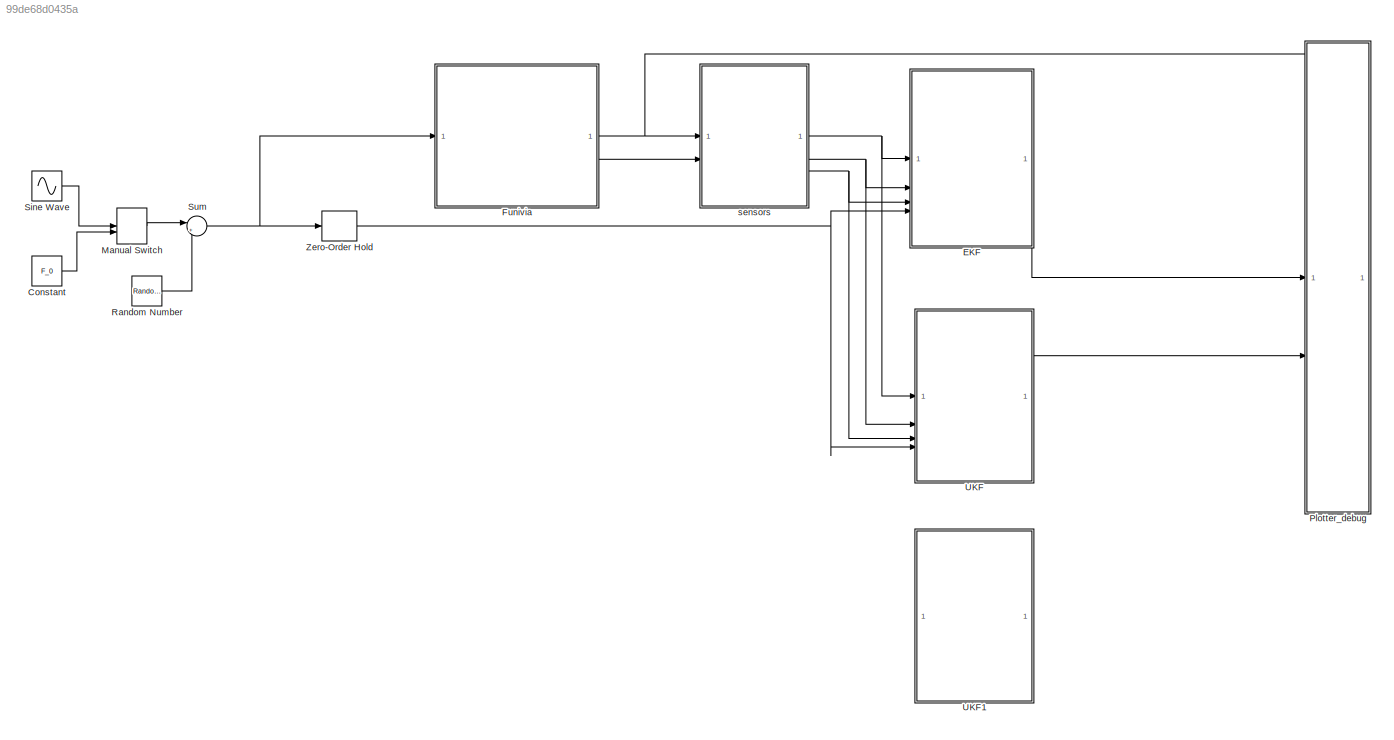
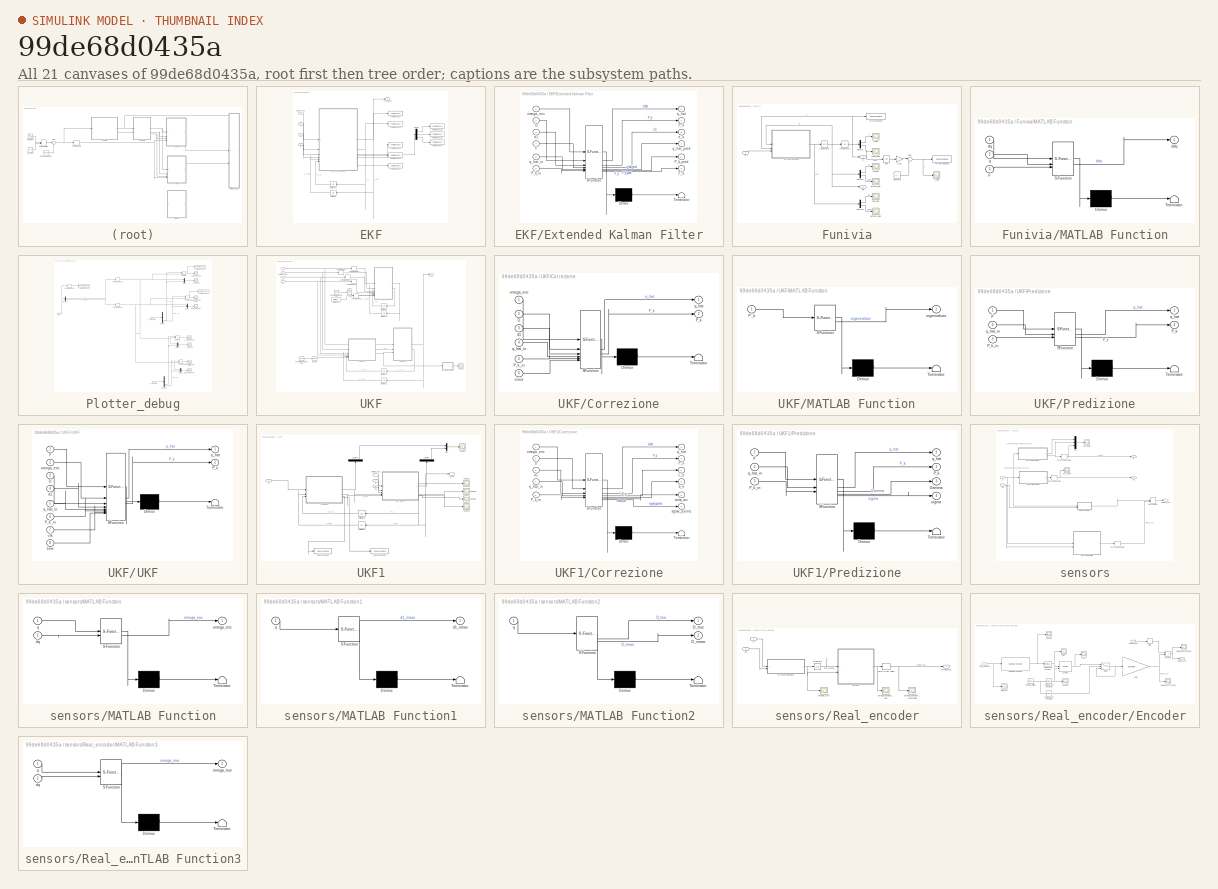
[diagram: thumbnail index - all 21 canvases of the model, root first then tree order]
MODEL slx_99de68d0435a
KIND model
CONFIG AbsTol = auto
CONFIG EnableMultiTasking = off
CONFIG FixedStep = 1e-5
CONFIG MaxStep = auto
CONFIG MinStep = auto
CONFIG RelTol = auto
CONFIG SampleTimeConstraint = Unconstrained
CONFIG SolverName = VariableStepAuto
CONFIG StartTime = 0.0
CONFIG StopTime = 10
BLOCK [Constant] Constant
  Value = F_0
BLOCK [SubSystem] EKF
BLOCK [Inport] EKF/D
  Port = 2
BLOCK [Demux] EKF/Demux
  Outputs = 3
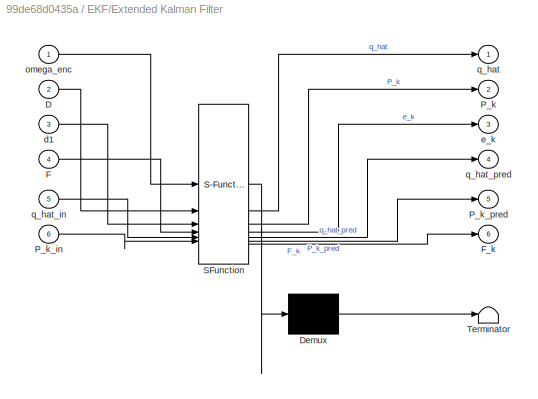
BLOCK [SubSystem] EKF/Extended Kalman Filter
  ErrorFcn = Stateflow.Translate.translate
  PermitHierarchicalResolution = ExplicitOnly
  SFBlockType = MATLAB Function
  TreatAsAtomicUnit = on
BLOCK [Demux] EKF/Extended Kalman Filter/ Demux 
  Outputs = 1
BLOCK [S-Function] EKF/Extended Kalman Filter/ SFunction 
  EnableBusSupport = on
  FunctionName = sf_sfun
  Parameters = R_k,min_sample_rates,params
  PortCounts = [6 7]
  SFcnIsStateOwnerBlock = off
  SFunctionDeploymentMode = off
  Tag = Stateflow S-Function 5
BLOCK [Terminator] EKF/Extended Kalman Filter/ Terminator 
BLOCK [Inport] EKF/Extended Kalman Filter/D
  Port = 2
BLOCK [Inport] EKF/Extended Kalman Filter/F
  Port = 4
BLOCK [Outport] EKF/Extended Kalman Filter/F_k
  Port = 6
BLOCK [Outport] EKF/Extended Kalman Filter/P_k
  Port = 2
BLOCK [Inport] EKF/Extended Kalman Filter/P_k_in
  Port = 6
BLOCK [Outport] EKF/Extended Kalman Filter/P_k_pred
  Port = 5
BLOCK [Inport] EKF/Extended Kalman Filter/d1
  Port = 3
BLOCK [Outport] EKF/Extended Kalman Filter/e_k
  Port = 3
BLOCK [Inport] EKF/Extended Kalman Filter/omega_enc
BLOCK [Outport] EKF/Extended Kalman Filter/q_hat
BLOCK [Inport] EKF/Extended Kalman Filter/q_hat_in
  Port = 5
BLOCK [Outport] EKF/Extended Kalman Filter/q_hat_pred
  Port = 4
BLOCK [Inport] EKF/F
  Port = 4
BLOCK [ToWorkspace] EKF/To Workspace
  FixptAsFi = on
  MaxDataPoints = inf
  SampleTime = -1
  SaveFormat = Timeseries
  VariableName = q_hat_computed
BLOCK [ToWorkspace] EKF/To Workspace1
  FixptAsFi = on
  MaxDataPoints = inf
  SampleTime = -1
  SaveFormat = Timeseries
  VariableName = e_k_D
BLOCK [ToWorkspace] EKF/To Workspace2
  FixptAsFi = on
  MaxDataPoints = inf
  SampleTime = -1
  SaveFormat = Timeseries
  VariableName = e_k_d1
BLOCK [ToWorkspace] EKF/To Workspace3
  FixptAsFi = on
  MaxDataPoints = inf
  SampleTime = -1
  SaveFormat = Timeseries
  VariableName = e_k_omega
BLOCK [ToWorkspace] EKF/To Workspace4
  FixptAsFi = on
  MaxDataPoints = inf
  SampleTime = -1
  SaveFormat = Timeseries
  VariableName = P_k_corr
BLOCK [ToWorkspace] EKF/To Workspace5
  FixptAsFi = on
  MaxDataPoints = inf
  SampleTime = -1
  SaveFormat = Timeseries
  VariableName = q_hat_pred
BLOCK [ToWorkspace] EKF/To Workspace6
  FixptAsFi = on
  MaxDataPoints = inf
  SampleTime = -1
  SaveFormat = Timeseries
  VariableName = P_k_pred
BLOCK [ToWorkspace] EKF/To Workspace7
  FixptAsFi = on
  MaxDataPoints = inf
  SampleTime = -1
  SaveFormat = Timeseries
  VariableName = F_k
BLOCK [UnitDelay] EKF/Unit Delay
  HasFrameUpgradeWarning = on
  InitialCondition = q_hat_0
  NameLocation = top
  SampleTime = -1
BLOCK [UnitDelay] EKF/Unit Delay1
  HasFrameUpgradeWarning = on
  InitialCondition = eye(4)
  NameLocation = top
  SampleTime = -1
BLOCK [Inport] EKF/d1
  Port = 3
BLOCK [Inport] EKF/omega_enc
BLOCK [Outport] EKF/q_hat_EKF
BLOCK [SubSystem] Funivia
BLOCK [Constant] Funivia/Constant
  Value = L-l
BLOCK [Trigonometry] Funivia/Cos
  Operator = cos
BLOCK [Demux] Funivia/Demux
  Outputs = 2
BLOCK [Demux] Funivia/Demux1
  Outputs = 2
BLOCK [Demux] Funivia/Demux2
  Outputs = 2
BLOCK [Inport] Funivia/F
BLOCK [Gain] Funivia/Gain
  Gain = l
BLOCK [Integrator] Funivia/Integrator
  InitialCondition = dq_0
BLOCK [Integrator] Funivia/Integrator1
  InitialCondition = q_0
BLOCK [SubSystem] Funivia/MATLAB Function
  ErrorFcn = Stateflow.Translate.translate
  PermitHierarchicalResolution = ExplicitOnly
  SFBlockType = MATLAB Function
  TreatAsAtomicUnit = on
BLOCK [Demux] Funivia/MATLAB Function/ Demux 
  Outputs = 1
BLOCK [S-Function] Funivia/MATLAB Function/ SFunction 
  EnableBusSupport = on
  FunctionName = sf_sfun
  Parameters = params_incert
  PortCounts = [3 2]
  SFcnIsStateOwnerBlock = off
  SFunctionDeploymentMode = off
  Tag = Stateflow S-Function 2
BLOCK [Terminator] Funivia/MATLAB Function/ Terminator 
BLOCK [Inport] Funivia/MATLAB Function/F
  Port = 3
BLOCK [Outport] Funivia/MATLAB Function/ddq
BLOCK [Inport] Funivia/MATLAB Function/dq
BLOCK [Inport] Funivia/MATLAB Function/q
  Port = 2
BLOCK [Sum] Funivia/Sum
  Inputs = |++
BLOCK [ToWorkspace] Funivia/To Workspace
  FixptAsFi = on
  MaxDataPoints = inf
  SampleTime = -1
  SaveFormat = Timeseries
  VariableName = q
BLOCK [ToWorkspace] Funivia/To Workspace1
  FixptAsFi = on
  MaxDataPoints = inf
  SampleTime = -1
  SaveFormat = Timeseries
  VariableName = z
BLOCK [Scope] Funivia/ddtheta_plot
  Floating = off
  NumInputPorts = 1
  ScopeSpecificationString = Simulink.scopes.TimeScopeBlockCfg('CurrentConfiguration', extmgr.ConfigurationSet(extmgr.Configuration('Core','General UI',true),extmgr.Configuration('Core','Source UI',true),extmgr.Configuration('Sources','WiredSimulink',true,'DataLoggingVariableName','ScopeData4'),extmgr.Configuration('Visuals','Time Domain',true,'SerializedDisplays',{struct('MinYLimReal','-0.02636','MaxYLimReal','0.03729','YLab...<+1438ch>
BLOCK [Scope] Funivia/ddx_plot
  Floating = off
  NumInputPorts = 1
  ScopeSpecificationString = Simulink.scopes.TimeScopeBlockCfg('CurrentConfiguration', extmgr.ConfigurationSet(extmgr.Configuration('Core','General UI',true),extmgr.Configuration('Core','Source UI',true),extmgr.Configuration('Sources','WiredSimulink',true,'DataLoggingVariableName','ScopeData5'),extmgr.Configuration('Visuals','Time Domain',true,'SerializedDisplays',{struct('MinYLimReal','-4.75064','MaxYLimReal','5.3612','YLabe...<+1480ch>
BLOCK [Outport] Funivia/dq
  Port = 2
BLOCK [Scope] Funivia/dtheta_plot
  Floating = off
  NumInputPorts = 1
  ScopeSpecificationString = Simulink.scopes.TimeScopeBlockCfg('CurrentConfiguration', extmgr.ConfigurationSet(extmgr.Configuration('Core','General UI',true),extmgr.Configuration('Core','Source UI',true),extmgr.Configuration('Sources','WiredSimulink',true,'DataLoggingVariableName','ScopeData2'),extmgr.Configuration('Visuals','Time Domain',true,'SerializedDisplays',{struct('MinYLimReal','-0.08246','MaxYLimReal','0.08249','YLab...<+1419ch>
BLOCK [Scope] Funivia/dx_plot
  Floating = off
  NumInputPorts = 1
  ScopeSpecificationString = Simulink.scopes.TimeScopeBlockCfg('CurrentConfiguration', extmgr.ConfigurationSet(extmgr.Configuration('Core','General UI',true),extmgr.Configuration('Core','Source UI',true),extmgr.Configuration('Sources','WiredSimulink',true,'DataLoggingVariableName','ScopeData3'),extmgr.Configuration('Visuals','Time Domain',true,'SerializedDisplays',{struct('MinYLimReal','-5.83307','MaxYLimReal','52.49767','YLa...<+1481ch>
BLOCK [Outport] Funivia/q
BLOCK [Scope] Funivia/theta_plot
  Floating = off
  NumInputPorts = 1
  ScopeSpecificationString = Simulink.scopes.TimeScopeBlockCfg('CurrentConfiguration', extmgr.ConfigurationSet(extmgr.Configuration('Core','General UI',true),extmgr.Configuration('Core','Source UI',true),extmgr.Configuration('Sources','WiredSimulink',true),extmgr.Configuration('Visuals','Time Domain',true,'SerializedDisplays',{struct('MinYLimReal','-0.03363','MaxYLimReal','0.00489','YLabelReal','','MinYLimMag','0.00000','MaxY...<+1399ch>
BLOCK [Scope] Funivia/x_plot
  Floating = off
  NumInputPorts = 1
  ScopeSpecificationString = Simulink.scopes.TimeScopeBlockCfg('CurrentConfiguration', extmgr.ConfigurationSet(extmgr.Configuration('Core','General UI',true),extmgr.Configuration('Core','Source UI',true),extmgr.Configuration('Sources','WiredSimulink',true,'DataLoggingVariableName','ScopeData1'),extmgr.Configuration('Visuals','Time Domain',true,'SerializedDisplays',{struct('MinYLimReal','-0.40294','MaxYLimReal','3.62649','YLab...<+1474ch>
BLOCK [Scope] Funivia/z_plot
  Floating = off
  NumInputPorts = 1
  ScopeSpecificationString = Simulink.scopes.TimeScopeBlockCfg('CurrentConfiguration', extmgr.ConfigurationSet(extmgr.Configuration('Core','General UI',true),extmgr.Configuration('Core','Source UI',true),extmgr.Configuration('Sources','WiredSimulink',true,'DataLoggingVariableName','ScopeData1'),extmgr.Configuration('Visuals','Time Domain',true,'SerializedDisplays',{struct('MinYLimReal','-0.275','MaxYLimReal','2.475','YLabelRe...<+1470ch>
BLOCK [ManualSwitch] Manual Switch
  CurrentSetting = 0
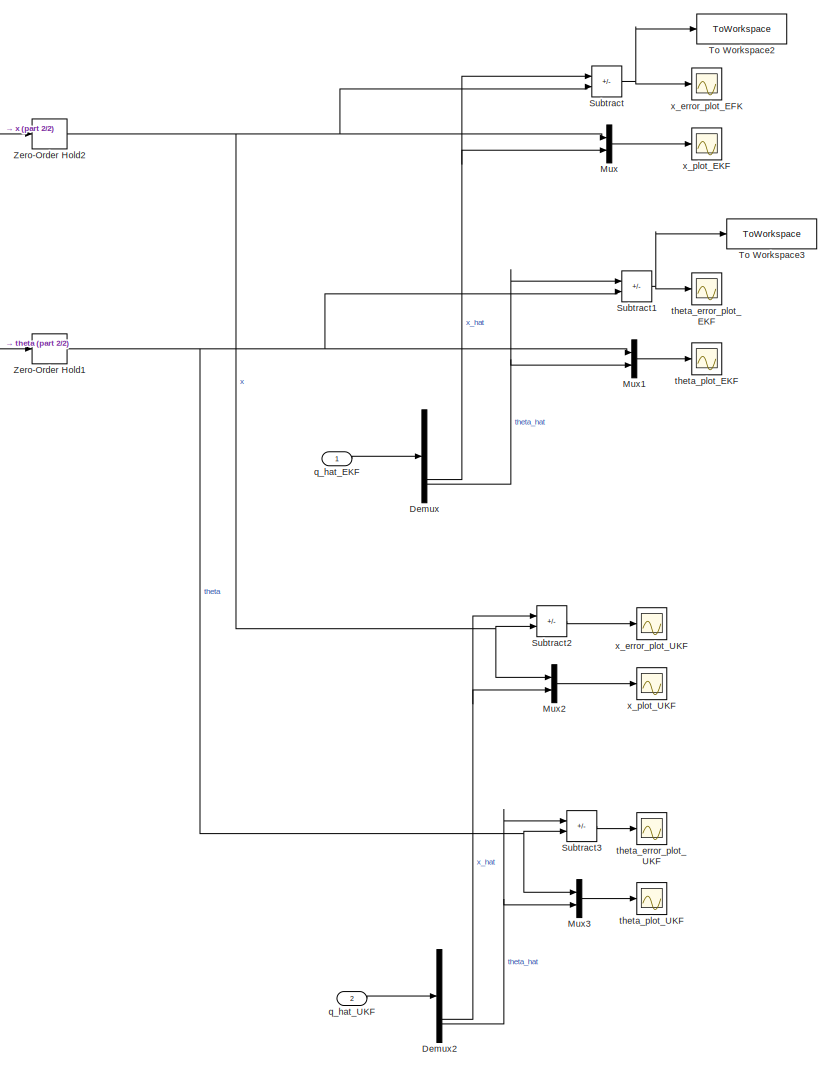
[diagram: Plotter_debug - part 1/2, right side, full height]
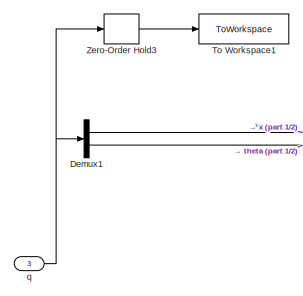
[diagram: Plotter_debug - part 2/2, top left region]
BLOCK [SubSystem] Plotter_debug
  PortSchema = {"entries":[{"content":{"sides":[{"content":{"connectorIds":["In1","In2"]},"type":"ConnectorPlacement.EquallySpacedRectSide","uuid":"d01a7d39-b326-48f3-bf6d-774b593ab054"},{"content":{"side":"RIGHT"},"type":"ConnectorPlacement.EquallySpacedRectSide","uuid":"87cbfa34-b37b-41ae-99cb-fc2d681c6b8e"},{"content":{"connectorIds":["In3"],"side":"TOP"},"type":"ConnectorPlacement.EquallySpacedRectSide","uui...<+227ch>
BLOCK [Demux] Plotter_debug/Demux
BLOCK [Demux] Plotter_debug/Demux1
  Outputs = 2
BLOCK [Demux] Plotter_debug/Demux2
BLOCK [Mux] Plotter_debug/Mux
  DisplayOption = bar
  Inputs = 2
BLOCK [Mux] Plotter_debug/Mux1
  DisplayOption = bar
  Inputs = 2
BLOCK [Mux] Plotter_debug/Mux2
  DisplayOption = bar
  Inputs = 2
BLOCK [Mux] Plotter_debug/Mux3
  DisplayOption = bar
  Inputs = 2
BLOCK [Sum] Plotter_debug/Subtract
  IconShape = rectangular
  Inputs = +-
BLOCK [Sum] Plotter_debug/Subtract1
  IconShape = rectangular
  Inputs = +-
BLOCK [Sum] Plotter_debug/Subtract2
  IconShape = rectangular
  Inputs = +-
BLOCK [Sum] Plotter_debug/Subtract3
  IconShape = rectangular
  Inputs = +-
BLOCK [ToWorkspace] Plotter_debug/To Workspace1
  FixptAsFi = on
  MaxDataPoints = inf
  SampleTime = -1
  SaveFormat = Timeseries
  VariableName = q_true
BLOCK [ToWorkspace] Plotter_debug/To Workspace2
  FixptAsFi = on
  MaxDataPoints = inf
  SampleTime = -1
  SaveFormat = Timeseries
  VariableName = x_error
BLOCK [ToWorkspace] Plotter_debug/To Workspace3
  FixptAsFi = on
  MaxDataPoints = inf
  SampleTime = -1
  SaveFormat = Timeseries
  VariableName = theta_error
BLOCK [ZeroOrderHold] Plotter_debug/Zero-Order Hold1
  SampleTime = min_sample_rates
BLOCK [ZeroOrderHold] Plotter_debug/Zero-Order Hold2
  SampleTime = min_sample_rates
BLOCK [ZeroOrderHold] Plotter_debug/Zero-Order Hold3
  SampleTime = min_sample_rates
BLOCK [Inport] Plotter_debug/q
  Port = 3
BLOCK [Inport] Plotter_debug/q_hat_EKF
BLOCK [Inport] Plotter_debug/q_hat_UKF
  Port = 2
BLOCK [Scope] Plotter_debug/theta_error_plot_EKF
  Floating = off
  NumInputPorts = 1
  ScopeSpecificationString = Simulink.scopes.TimeScopeBlockCfg('CurrentConfiguration', extmgr.ConfigurationSet(extmgr.Configuration('Core','General UI',true,'DisplayFullSourceName',true),extmgr.Configuration('Core','Source UI',true),extmgr.Configuration('Sources','WiredSimulink',true,'DataLoggingVariableName','ScopeData4'),extmgr.Configuration('Visuals','Time Domain',true,'SerializedDisplays',{struct('MinYLimReal','-0.01414',...<+1473ch>
BLOCK [Scope] Plotter_debug/theta_error_plot_UKF
  Floating = off
  NumInputPorts = 1
  ScopeSpecificationString = Simulink.scopes.TimeScopeBlockCfg('CurrentConfiguration', extmgr.ConfigurationSet(extmgr.Configuration('Core','General UI',true,'DisplayFullSourceName',true),extmgr.Configuration('Core','Source UI',true),extmgr.Configuration('Sources','WiredSimulink',true,'DataLoggingVariableName','ScopeData1'),extmgr.Configuration('Visuals','Time Domain',true,'SerializedDisplays',{struct('MinYLimReal','3.97678','...<+1470ch>
BLOCK [Scope] Plotter_debug/theta_plot_EKF
  Floating = off
  NumInputPorts = 1
  ScopeSpecificationString = Simulink.scopes.TimeScopeBlockCfg('CurrentConfiguration', extmgr.ConfigurationSet(extmgr.Configuration('Core','General UI',true,'DisplayFullSourceName',true),extmgr.Configuration('Core','Source UI',true),extmgr.Configuration('Sources','WiredSimulink',true,'DataLoggingVariableName','ScopeData2'),extmgr.Configuration('Visuals','Time Domain',true,'SerializedDisplays',{struct('MinYLimReal','-2.03934',...<+1480ch>
BLOCK [Scope] Plotter_debug/theta_plot_UKF
  Floating = off
  NumInputPorts = 1
  ScopeSpecificationString = Simulink.scopes.TimeScopeBlockCfg('CurrentConfiguration', extmgr.ConfigurationSet(extmgr.Configuration('Core','General UI',true,'DisplayFullSourceName',true),extmgr.Configuration('Core','Source UI',true),extmgr.Configuration('Sources','WiredSimulink',true,'DataLoggingVariableName','ScopeData2'),extmgr.Configuration('Visuals','Time Domain',true,'SerializedDisplays',{struct('MinYLimReal','-0.26156',...<+1542ch>
BLOCK [Scope] Plotter_debug/x_error_plot_EFK
  Floating = off
  NumInputPorts = 1
  ScopeSpecificationString = Simulink.scopes.TimeScopeBlockCfg('CurrentConfiguration', extmgr.ConfigurationSet(extmgr.Configuration('Core','General UI',true,'DisplayFullSourceName',true),extmgr.Configuration('Core','Source UI',true),extmgr.Configuration('Sources','WiredSimulink',true,'DataLoggingVariableName','ScopeData3'),extmgr.Configuration('Visuals','Time Domain',true,'SerializedDisplays',{struct('MinYLimReal','-0.14359',...<+1462ch>
BLOCK [Scope] Plotter_debug/x_error_plot_UKF
  Floating = off
  NumInputPorts = 1
  ScopeSpecificationString = Simulink.scopes.TimeScopeBlockCfg('CurrentConfiguration', extmgr.ConfigurationSet(extmgr.Configuration('Core','General UI',true,'DisplayFullSourceName',true),extmgr.Configuration('Core','Source UI',true),extmgr.Configuration('Sources','WiredSimulink',true,'DataLoggingVariableName','ScopeData3'),extmgr.Configuration('Visuals','Time Domain',true,'SerializedDisplays',{struct('MinYLimReal','-5690.2132...<+1488ch>
BLOCK [Scope] Plotter_debug/x_plot_EKF
  Floating = off
  NumInputPorts = 1
  ScopeSpecificationString = Simulink.scopes.TimeScopeBlockCfg('CurrentConfiguration', extmgr.ConfigurationSet(extmgr.Configuration('Core','General UI',true,'DisplayFullSourceName',true),extmgr.Configuration('Core','Source UI',true),extmgr.Configuration('Sources','WiredSimulink',true),extmgr.Configuration('Visuals','Time Domain',true,'SerializedDisplays',{struct('MinYLimReal','-0.04297','MaxYLimReal','0.18265','YLabelReal',''...<+1430ch>
BLOCK [Scope] Plotter_debug/x_plot_UKF
  Floating = off
  NumInputPorts = 1
  ScopeSpecificationString = Simulink.scopes.TimeScopeBlockCfg('CurrentConfiguration', extmgr.ConfigurationSet(extmgr.Configuration('Core','General UI',true,'DisplayFullSourceName',true),extmgr.Configuration('Core','Source UI',true),extmgr.Configuration('Sources','WiredSimulink',true,'DataLoggingVariableName','ScopeData4'),extmgr.Configuration('Visuals','Time Domain',true,'SerializedDisplays',{struct('MinYLimReal','-1.39738',...<+1478ch>
BLOCK [RandomNumber] Random Number
  SampleTime = min_sample_rates
  Variance = 36
BLOCK [Sin] Sine Wave
  Amplitude = F_0
  SampleTime = 0
BLOCK [Sum] Sum
  Inputs = |++
BLOCK [SubSystem] UKF
BLOCK [SubSystem] UKF/Correzione
  ErrorFcn = Stateflow.Translate.translate
  PermitHierarchicalResolution = ExplicitOnly
  SFBlockType = MATLAB Function
  TreatAsAtomicUnit = on
BLOCK [Demux] UKF/Correzione/ Demux 
  Outputs = 1
BLOCK [S-Function] UKF/Correzione/ SFunction 
  EnableBusSupport = on
  FunctionName = sf_sfun
  Parameters = R_k,params
  PortCounts = [6 3]
  SFcnIsStateOwnerBlock = off
  SFunctionDeploymentMode = off
  Tag = Stateflow S-Function 8
BLOCK [Terminator] UKF/Correzione/ Terminator 
BLOCK [Inport] UKF/Correzione/D
  Port = 2
BLOCK [Outport] UKF/Correzione/P_k
  Port = 2
BLOCK [Inport] UKF/Correzione/P_k_in
  Port = 5
BLOCK [Inport] UKF/Correzione/clock
  Port = 6
BLOCK [Inport] UKF/Correzione/d1
  Port = 3
BLOCK [Inport] UKF/Correzione/omega_enc
BLOCK [Outport] UKF/Correzione/q_hat
BLOCK [Inport] UKF/Correzione/q_hat_in
  Port = 4
BLOCK [Reference] UKF/Counter Free-Running  REF=simulink/Sources/Counter
Free-Running
  Commented = on
  SourceBlock = simulink/Sources/Counter\nFree-Running
  SourceType = Counter Free-Running
BLOCK [Reference] UKF/Counter Free-Running1  REF=simulink/Sources/Counter
Free-Running
  SourceBlock = simulink/Sources/Counter\nFree-Running
  SourceType = Counter Free-Running
BLOCK [Inport] UKF/D
  Port = 2
BLOCK [DigitalClock] UKF/Digital Clock
  Commented = on
  SampleTime = min_sample_rates/10
BLOCK [Inport] UKF/F
  Port = 4
BLOCK [Reference] UKF/IsZero  REF=simulink/Logic and Bit
Operations/Compare
To Zero
  Commented = on
  LibrarySourceBlock = simulink/Quick Insert/Logic and Bit\nOperations/IsZero
  SourceBlock = simulink/Logic and Bit\nOperations/Compare\nTo Zero
  SourceType = Compare To Zero
BLOCK [Reference] UKF/IsZero1  REF=simulink/Logic and Bit
Operations/Compare
To Zero
  LibrarySourceBlock = simulink/Quick Insert/Logic and Bit\nOperations/IsZero
  SourceBlock = simulink/Logic and Bit\nOperations/Compare\nTo Zero
  SourceType = Compare To Zero
BLOCK [SubSystem] UKF/MATLAB Function
  ErrorFcn = Stateflow.Translate.translate
  PermitHierarchicalResolution = ExplicitOnly
  SFBlockType = MATLAB Function
  TreatAsAtomicUnit = on
BLOCK [Demux] UKF/MATLAB Function/ Demux 
  Outputs = 1
BLOCK [S-Function] UKF/MATLAB Function/ SFunction 
  EnableBusSupport = on
  FunctionName = sf_sfun
  PortCounts = [1 2]
  SFcnIsStateOwnerBlock = off
  SFunctionDeploymentMode = off
  Tag = Stateflow S-Function 12
BLOCK [Terminator] UKF/MATLAB Function/ Terminator 
BLOCK [Inport] UKF/MATLAB Function/P_k
BLOCK [Outport] UKF/MATLAB Function/eigenvalues
BLOCK [SubSystem] UKF/Predizione
  ErrorFcn = Stateflow.Translate.translate
  PermitHierarchicalResolution = ExplicitOnly
  SFBlockType = MATLAB Function
  TreatAsAtomicUnit = on
BLOCK [Demux] UKF/Predizione/ Demux 
  Outputs = 1
BLOCK [S-Function] UKF/Predizione/ SFunction 
  EnableBusSupport = on
  FunctionName = sf_sfun
  Parameters = min_sample_rates,params
  PortCounts = [3 3]
  SFcnIsStateOwnerBlock = off
  SFunctionDeploymentMode = off
  Tag = Stateflow S-Function 7
BLOCK [Terminator] UKF/Predizione/ Terminator 
BLOCK [Inport] UKF/Predizione/F
BLOCK [Outport] UKF/Predizione/P_k
  Port = 2
BLOCK [Inport] UKF/Predizione/P_k_in
  Port = 3
BLOCK [Outport] UKF/Predizione/q_hat
BLOCK [Inport] UKF/Predizione/q_hat_in
  Port = 2
BLOCK [Scope] UKF/Scope
  Floating = off
  NumInputPorts = 1
  ScopeSpecificationString = Simulink.scopes.TimeScopeBlockCfg('CurrentConfiguration', extmgr.ConfigurationSet(extmgr.Configuration('Core','General UI',true),extmgr.Configuration('Core','Source UI',true),extmgr.Configuration('Sources','WiredSimulink',true,'DataLoggingVariableName','ScopeData1'),extmgr.Configuration('Visuals','Time Domain',true,'SerializedDisplays',{struct('MinYLimReal','-0.01967','MaxYLimReal','0.03008','YLab...<+1636ch>
BLOCK [SubSystem] UKF/UKF
  Commented = on
  ErrorFcn = Stateflow.Translate.translate
  PermitHierarchicalResolution = ExplicitOnly
  SFBlockType = MATLAB Function
  TreatAsAtomicUnit = on
BLOCK [Demux] UKF/UKF/ Demux 
  Outputs = 1
BLOCK [S-Function] UKF/UKF/ SFunction 
  EnableBusSupport = on
  FunctionName = sf_sfun
  Parameters = R_k,min_sample_rates,params
  PortCounts = [8 3]
  SFcnIsStateOwnerBlock = off
  SFunctionDeploymentMode = off
  Tag = Stateflow S-Function 11
BLOCK [Terminator] UKF/UKF/ Terminator 
BLOCK [Inport] UKF/UKF/D
  Port = 3
BLOCK [Inport] UKF/UKF/F
BLOCK [Outport] UKF/UKF/P_k
  Port = 2
BLOCK [Inport] UKF/UKF/P_k_in
  Port = 6
BLOCK [Inport] UKF/UKF/clk
  Port = 7
BLOCK [Inport] UKF/UKF/d1
  Port = 4
BLOCK [Inport] UKF/UKF/omega_enc
  Port = 2
BLOCK [Outport] UKF/UKF/q_hat
BLOCK [Inport] UKF/UKF/q_hat_in
  Port = 5
BLOCK [Inport] UKF/UKF/time
  Port = 8
BLOCK [UnitDelay] UKF/Unit Delay1
  HasFrameUpgradeWarning = on
  InitialCondition = q_hat_0
  NameLocation = top
  SampleTime = -1
BLOCK [UnitDelay] UKF/Unit Delay2
  Commented = on
  HasFrameUpgradeWarning = on
  InitialCondition = q_hat_0
  NameLocation = top
  SampleTime = -1
BLOCK [UnitDelay] UKF/Unit Delay3
  Commented = on
  HasFrameUpgradeWarning = on
  InitialCondition = eye(4)
  NameLocation = top
  SampleTime = -1
BLOCK [UnitDelay] UKF/Unit Delay4
  HasFrameUpgradeWarning = on
  InitialCondition = eye(4)
  NameLocation = top
  SampleTime = -1
BLOCK [ZeroOrderHold] UKF/Zero-Order Hold1
  Commented = on
  SampleTime = min_sample_rates/100
BLOCK [ZeroOrderHold] UKF/Zero-Order Hold2
  Commented = on
  SampleTime = min_sample_rates/100
BLOCK [ZeroOrderHold] UKF/Zero-Order Hold3
  Commented = on
  SampleTime = min_sample_rates/100
BLOCK [ZeroOrderHold] UKF/Zero-Order Hold4
  Commented = on
  SampleTime = min_sample_rates/100
BLOCK [ZeroOrderHold] UKF/Zero-Order Hold5
  Commented = on
  SampleTime = min_sample_rates/100
BLOCK [Inport] UKF/d1
  Port = 3
BLOCK [Inport] UKF/omega_enc
BLOCK [Outport] UKF/q_hat
BLOCK [SubSystem] UKF1
  Commented = on
BLOCK [SubSystem] UKF1/Correzione
  ErrorFcn = Stateflow.Translate.translate
  PermitHierarchicalResolution = ExplicitOnly
  SFBlockType = MATLAB Function
  TreatAsAtomicUnit = on
BLOCK [Demux] UKF1/Correzione/ Demux 
  Outputs = 1
BLOCK [S-Function] UKF1/Correzione/ SFunction 
  EnableBusSupport = on
  FunctionName = sf_sfun
  Parameters = R_k,min_sample_rates,params
  PortCounts = [5 7]
  SFcnIsStateOwnerBlock = off
  SFunctionDeploymentMode = off
  Tag = Stateflow S-Function 9
BLOCK [Terminator] UKF1/Correzione/ Terminator 
BLOCK [Inport] UKF1/Correzione/D
  Port = 2
BLOCK [Outport] UKF1/Correzione/L_k
  Port = 3
BLOCK [Outport] UKF1/Correzione/P_k
  Port = 2
BLOCK [Inport] UKF1/Correzione/P_k_in
  Port = 5
BLOCK [Outport] UKF1/Correzione/S_k
  Port = 4
BLOCK [Outport] UKF1/Correzione/cross_cov
  Port = 5
BLOCK [Inport] UKF1/Correzione/d1
  Port = 3
BLOCK [Inport] UKF1/Correzione/omega_enc
BLOCK [Outport] UKF1/Correzione/q_hat
BLOCK [Inport] UKF1/Correzione/q_hat_in
  Port = 4
BLOCK [Outport] UKF1/Correzione/sigma_points
  Port = 6
BLOCK [Inport] UKF1/D
  Port = 2
BLOCK [Demux] UKF1/Demux
  NameLocation = right
BLOCK [Demux] UKF1/Demux1
  NameLocation = right
BLOCK [Inport] UKF1/F
  Port = 4
BLOCK [Mux] UKF1/Mux
  DisplayOption = bar
  Inputs = 2
BLOCK [SubSystem] UKF1/Predizione
  ErrorFcn = Stateflow.Translate.translate
  PermitHierarchicalResolution = ExplicitOnly
  SFBlockType = MATLAB Function
  TreatAsAtomicUnit = on
BLOCK [Demux] UKF1/Predizione/ Demux 
  Outputs = 1
BLOCK [S-Function] UKF1/Predizione/ SFunction 
  EnableBusSupport = on
  FunctionName = sf_sfun
  Parameters = min_sample_rates,params
  PortCounts = [3 5]
  SFcnIsStateOwnerBlock = off
  SFunctionDeploymentMode = off
  Tag = Stateflow S-Function 10
BLOCK [Terminator] UKF1/Predizione/ Terminator 
BLOCK [Inport] UKF1/Predizione/F
BLOCK [Outport] UKF1/Predizione/Gamma
  Port = 3
BLOCK [Outport] UKF1/Predizione/P_k
  Port = 2
BLOCK [Inport] UKF1/Predizione/P_k_in
  Port = 3
BLOCK [Outport] UKF1/Predizione/q_hat
BLOCK [Inport] UKF1/Predizione/q_hat_in
  Port = 2
BLOCK [Outport] UKF1/Predizione/sigma
  Port = 4
BLOCK [Scope] UKF1/Scope
  Floating = off
  NumInputPorts = 1
  ScopeSpecificationString = Simulink.scopes.TimeScopeBlockCfg('CurrentConfiguration', extmgr.ConfigurationSet(extmgr.Configuration('Core','General UI',true),extmgr.Configuration('Core','Source UI',true),extmgr.Configuration('Sources','WiredSimulink',true,'DataLoggingVariableName','ScopeData1'),extmgr.Configuration('Visuals','Time Domain',true,'SerializedDisplays',{struct('MinYLimReal','-1.05788','MaxYLimReal','1.10084','YLab...<+1448ch>
BLOCK [Scope] UKF1/Scope1
  Floating = off
  NumInputPorts = 1
  ScopeSpecificationString = Simulink.scopes.TimeScopeBlockCfg('CurrentConfiguration', extmgr.ConfigurationSet(extmgr.Configuration('Core','General UI',true),extmgr.Configuration('Core','Source UI',true),extmgr.Configuration('Sources','WiredSimulink',true,'DataLoggingVariableName','ScopeData1'),extmgr.Configuration('Visuals','Time Domain',true,'SerializedDisplays',{struct('MinYLimReal','-0.37842','MaxYLimReal','0.68676','YLab...<+1658ch>
BLOCK [Scope] UKF1/Scope2
  Floating = off
  NumInputPorts = 1
  ScopeSpecificationString = Simulink.scopes.TimeScopeBlockCfg('CurrentConfiguration', extmgr.ConfigurationSet(extmgr.Configuration('Core','General UI',true),extmgr.Configuration('Core','Source UI',true),extmgr.Configuration('Sources','WiredSimulink',true,'DataLoggingVariableName','ScopeData2'),extmgr.Configuration('Visuals','Time Domain',true,'SerializedDisplays',{struct('MinYLimReal','-7.10021','MaxYLimReal','63.8042','YLab...<+1598ch>
BLOCK [Scope] UKF1/Scope3
  Floating = off
  NumInputPorts = 1
  ScopeSpecificationString = Simulink.scopes.TimeScopeBlockCfg('CurrentConfiguration', extmgr.ConfigurationSet(extmgr.Configuration('Core','General UI',true),extmgr.Configuration('Core','Source UI',true),extmgr.Configuration('Sources','WiredSimulink',true,'DataLoggingVariableName','ScopeData3'),extmgr.Configuration('Visuals','Time Domain',true,'SerializedDisplays',{struct('MinYLimReal','-3.10967','MaxYLimReal','4.64764','YLab...<+1732ch>
BLOCK [Scope] UKF1/Scope4
  Floating = off
  NumInputPorts = 1
  ScopeSpecificationString = Simulink.scopes.TimeScopeBlockCfg('CurrentConfiguration', extmgr.ConfigurationSet(extmgr.Configuration('Core','General UI',true),extmgr.Configuration('Core','Source UI',true),extmgr.Configuration('Sources','WiredSimulink',true,'DataLoggingVariableName','ScopeData4'),extmgr.Configuration('Visuals','Time Domain',true,'SerializedDisplays',{struct('MinYLimReal','-11.17641','MaxYLimReal','64.58758','YL...<+3314ch>
BLOCK [ToWorkspace] UKF1/To Workspace
  FixptAsFi = on
  MaxDataPoints = inf
  SampleTime = -1
  SaveFormat = Timeseries
  VariableName = Gamma
BLOCK [ToWorkspace] UKF1/To Workspace1
  FixptAsFi = on
  MaxDataPoints = inf
  SampleTime = -1
  SaveFormat = Timeseries
  VariableName = sigma
BLOCK [UnitDelay] UKF1/Unit Delay2
  HasFrameUpgradeWarning = on
  InitialCondition = q_hat_0
  NameLocation = top
  SampleTime = -1
BLOCK [UnitDelay] UKF1/Unit Delay3
  HasFrameUpgradeWarning = on
  InitialCondition = eye(4)
  NameLocation = top
  SampleTime = -1
BLOCK [Inport] UKF1/d1
  Port = 3
BLOCK [Inport] UKF1/omega_enc
BLOCK [Outport] UKF1/q_hat
BLOCK [ZeroOrderHold] Zero-Order Hold
  SampleTime = min_sample_rates
BLOCK [SubSystem] sensors
BLOCK [Outport] sensors/D
  Port = 2
BLOCK [Scope] sensors/D_scope
  Floating = off
  NumInputPorts = 1
  ScopeSpecificationString = Simulink.scopes.TimeScopeBlockCfg('CurrentConfiguration', extmgr.ConfigurationSet(extmgr.Configuration('Core','General UI',true),extmgr.Configuration('Core','Source UI',true),extmgr.Configuration('Sources','WiredSimulink',true,'DataLoggingVariableName','ScopeData1'),extmgr.Configuration('Visuals','Time Domain',true,'SerializedDisplays',{struct('MinYLimReal','-840.5','MaxYLimReal','7134.5','YLabelR...<+1490ch>
BLOCK [SubSystem] sensors/MATLAB Function
  ErrorFcn = Stateflow.Translate.translate
  PermitHierarchicalResolution = ExplicitOnly
  SFBlockType = MATLAB Function
  TreatAsAtomicUnit = on
BLOCK [Demux] sensors/MATLAB Function/ Demux 
  Outputs = 1
BLOCK [S-Function] sensors/MATLAB Function/ SFunction 
  EnableBusSupport = on
  FunctionName = sf_sfun
  Parameters = encoder_params,params
  PortCounts = [2 2]
  SFcnIsStateOwnerBlock = off
  SFunctionDeploymentMode = off
  Tag = Stateflow S-Function 6
BLOCK [Terminator] sensors/MATLAB Function/ Terminator 
BLOCK [Inport] sensors/MATLAB Function/dq
  Port = 2
BLOCK [Outport] sensors/MATLAB Function/omega_enc
BLOCK [Inport] sensors/MATLAB Function/q
BLOCK [SubSystem] sensors/MATLAB Function1
  ErrorFcn = Stateflow.Translate.translate
  PermitHierarchicalResolution = ExplicitOnly
  SFBlockType = MATLAB Function
  TreatAsAtomicUnit = on
BLOCK [Demux] sensors/MATLAB Function1/ Demux 
  Outputs = 1
BLOCK [S-Function] sensors/MATLAB Function1/ SFunction 
  EnableBusSupport = on
  FunctionName = sf_sfun
  Parameters = laserd1_params,params
  PortCounts = [1 2]
  SFcnIsStateOwnerBlock = off
  SFunctionDeploymentMode = off
  Tag = Stateflow S-Function 3
BLOCK [Terminator] sensors/MATLAB Function1/ Terminator 
BLOCK [Outport] sensors/MATLAB Function1/d1_meas
BLOCK [Inport] sensors/MATLAB Function1/q
BLOCK [SubSystem] sensors/MATLAB Function2
  ErrorFcn = Stateflow.Translate.translate
  PermitHierarchicalResolution = ExplicitOnly
  SFBlockType = MATLAB Function
  SystemSampleTime = 1/100
  TreatAsAtomicUnit = on
BLOCK [Demux] sensors/MATLAB Function2/ Demux 
  Outputs = 1
BLOCK [S-Function] sensors/MATLAB Function2/ SFunction 
  EnableBusSupport = on
  FunctionName = sf_sfun
  Parameters = laserD_params,params
  PortCounts = [1 3]
  SFcnIsStateOwnerBlock = off
  SFunctionDeploymentMode = off
  Tag = Stateflow S-Function 1
BLOCK [Terminator] sensors/MATLAB Function2/ Terminator 
BLOCK [Outport] sensors/MATLAB Function2/D_meas
  Port = 2
BLOCK [Outport] sensors/MATLAB Function2/D_true
BLOCK [Inport] sensors/MATLAB Function2/q
BLOCK [ManualSwitch] sensors/Manual Switch
  CurrentSetting = 0
BLOCK [Mux] sensors/Mux
  DisplayOption = bar
  Inputs = 3
BLOCK [SubSystem] sensors/Real_encoder
  Commented = on
BLOCK [SubSystem] sensors/Real_encoder/Encoder
BLOCK [Reference] sensors/Real_encoder/Encoder/Compare To Constant  REF=simulink/Logic and Bit
Operations/Compare
To Constant
  SourceBlock = simulink/Logic and Bit\nOperations/Compare\nTo Constant
  SourceType = Compare To Constant
BLOCK [Reference] sensors/Real_encoder/Encoder/Compare To Constant1  REF=simulink/Logic and Bit
Operations/Compare
To Constant
  SourceBlock = simulink/Logic and Bit\nOperations/Compare\nTo Constant
  SourceType = Compare To Constant
BLOCK [Reference] sensors/Real_encoder/Encoder/Compare To Constant2  REF=simulink/Logic and Bit
Operations/Compare
To Constant
  SourceBlock = simulink/Logic and Bit\nOperations/Compare\nTo Constant
  SourceType = Compare To Constant
BLOCK [Reference] sensors/Real_encoder/Encoder/Counter  REF=dspswit3/Counter
  SourceBlock = dspswit3/Counter
  SourceType = Counter
BLOCK [Reference] sensors/Real_encoder/Encoder/Counter Limited  REF=simulink/Sources/Counter
Limited
  SourceBlock = simulink/Sources/Counter\nLimited
  SourceType = Counter Limited
BLOCK [Gain] sensors/Real_encoder/Encoder/Gain
  Gain = encoder_resolution/0.02
BLOCK [Reference] sensors/Real_encoder/Encoder/Modulo by Constant  REF=embmathops/Modulo by Constant
  LibrarySourceBlock = embeddedMathLib/Modulo by Constant
  SourceBlock = embmathops/Modulo by Constant
  SourceType = fixed.system.ModByConstant
BLOCK [Product] sensors/Real_encoder/Encoder/Product
BLOCK [Scope] sensors/Real_encoder/Encoder/Scope1
  Floating = off
  NumInputPorts = 1
  ScopeSpecificationString = Simulink.scopes.TimeScopeBlockCfg('CurrentConfiguration', extmgr.ConfigurationSet(extmgr.Configuration('Core','General UI',true),extmgr.Configuration('Core','Source UI',true),extmgr.Configuration('Sources','WiredSimulink',true,'DataLoggingVariableName','ScopeData2'),extmgr.Configuration('Visuals','Time Domain',true,'SerializedDisplays',{struct('MinYLimReal','-0.0000016','MaxYLimReal','0.0000007','...<+1467ch>
BLOCK [Signum] sensors/Real_encoder/Encoder/Sign
BLOCK [Switch] sensors/Real_encoder/Encoder/Switch
  Criteria = u2 > Threshold
  InputSameDT = off
  SaturateOnIntegerOverflow = off
BLOCK [Scope] sensors/Real_encoder/Encoder/cnt
  Floating = off
  NumInputPorts = 1
  ScopeSpecificationString = Simulink.scopes.TimeScopeBlockCfg('CurrentConfiguration', extmgr.ConfigurationSet(extmgr.Configuration('Core','General UI',true),extmgr.Configuration('Core','Source UI',true),extmgr.Configuration('Sources','WiredSimulink',true,'DataLoggingVariableName','ScopeData3'),extmgr.Configuration('Visuals','Time Domain',true,'SerializedDisplays',{struct('MinYLimReal','-8.5','MaxYLimReal','76.5','YLabelReal'...<+1419ch>
BLOCK [Scope] sensors/Real_encoder/Encoder/inc
  Floating = off
  NumInputPorts = 1
  ScopeSpecificationString = Simulink.scopes.TimeScopeBlockCfg('CurrentConfiguration', extmgr.ConfigurationSet(extmgr.Configuration('Core','General UI',true),extmgr.Configuration('Core','Source UI',true),extmgr.Configuration('Sources','WiredSimulink',true,'DataLoggingVariableName','ScopeData4'),extmgr.Configuration('Visuals','Time Domain',true,'SerializedDisplays',{struct('MinYLimReal','-0.125','MaxYLimReal','1.125','YLabelRe...<+1436ch>
BLOCK [Scope] sensors/Real_encoder/Encoder/module
  Floating = off
  NumInputPorts = 1
  ScopeSpecificationString = Simulink.scopes.TimeScopeBlockCfg('CurrentConfiguration', extmgr.ConfigurationSet(extmgr.Configuration('Core','General UI',true),extmgr.Configuration('Core','Source UI',true),extmgr.Configuration('Sources','WiredSimulink',true,'DataLoggingVariableName','ScopeData6'),extmgr.Configuration('Visuals','Time Domain',true,'SerializedDisplays',{struct('MinYLimReal','-0.00077','MaxYLimReal','0.0069','YLabe...<+1443ch>
BLOCK [Outport] sensors/Real_encoder/Encoder/omega_enc
BLOCK [Scope] sensors/Real_encoder/Encoder/omega_enc_scope
  Floating = off
  NumInputPorts = 1
  ScopeSpecificationString = Simulink.scopes.TimeScopeBlockCfg('CurrentConfiguration', extmgr.ConfigurationSet(extmgr.Configuration('Core','General UI',true),extmgr.Configuration('Core','Source UI',true),extmgr.Configuration('Sources','WiredSimulink',true,'DataLoggingVariableName','ScopeData1'),extmgr.Configuration('Visuals','Time Domain',true,'SerializedDisplays',{struct('MinYLimReal','-0.79849','MaxYLimReal','7.18639','YLab...<+1438ch>
BLOCK [Scope] sensors/Real_encoder/Encoder/omega_enc_signed
  Floating = off
  NumInputPorts = 1
  ScopeSpecificationString = Simulink.scopes.TimeScopeBlockCfg('CurrentConfiguration', extmgr.ConfigurationSet(extmgr.Configuration('Core','General UI',true),extmgr.Configuration('Core','Source UI',true),extmgr.Configuration('Sources','WiredSimulink',true,'DataLoggingVariableName','ScopeData1'),extmgr.Configuration('Visuals','Time Domain',true,'SerializedDisplays',{struct('MinYLimReal','15.53095','MaxYLimReal','16.61297','YLa...<+1445ch>
BLOCK [Inport] sensors/Real_encoder/Encoder/omega_true
  Port = 2
BLOCK [Scope] sensors/Real_encoder/Encoder/theta_pul
  Floating = off
  NumInputPorts = 1
  ScopeSpecificationString = Simulink.scopes.TimeScopeBlockCfg('CurrentConfiguration', extmgr.ConfigurationSet(extmgr.Configuration('Core','General UI',true),extmgr.Configuration('Core','Source UI',true),extmgr.Configuration('Sources','WiredSimulink',true,'DataLoggingVariableName','ScopeData1'),extmgr.Configuration('Visuals','Time Domain',true,'SerializedDisplays',{struct('MinYLimReal','-4.06527','MaxYLimReal','36.58746','YLa...<+1458ch>
BLOCK [Inport] sensors/Real_encoder/Encoder/theta_puleggia
BLOCK [Integrator] sensors/Real_encoder/Integrator
BLOCK [SubSystem] sensors/Real_encoder/MATLAB Function3
  ErrorFcn = Stateflow.Translate.translate
  PermitHierarchicalResolution = ExplicitOnly
  SFBlockType = MATLAB Function
  TreatAsAtomicUnit = on
BLOCK [Demux] sensors/Real_encoder/MATLAB Function3/ Demux 
  Outputs = 1
BLOCK [S-Function] sensors/Real_encoder/MATLAB Function3/ SFunction 
  EnableBusSupport = on
  FunctionName = sf_sfun
  Parameters = encoder_params,params
  PortCounts = [2 2]
  SFcnIsStateOwnerBlock = off
  SFunctionDeploymentMode = off
  Tag = Stateflow S-Function 4
BLOCK [Terminator] sensors/Real_encoder/MATLAB Function3/ Terminator 
BLOCK [Inport] sensors/Real_encoder/MATLAB Function3/dq
  Port = 2
BLOCK [Outport] sensors/Real_encoder/MATLAB Function3/omega_true
BLOCK [Inport] sensors/Real_encoder/MATLAB Function3/q
BLOCK [ZeroOrderHold] sensors/Real_encoder/Zero-Order Hold2
  SampleTime = min_sample_rates
BLOCK [Inport] sensors/Real_encoder/dq
  Port = 2
BLOCK [Outport] sensors/Real_encoder/omega_enc
BLOCK [Scope] sensors/Real_encoder/omega_encoder_raw
  Floating = off
  NumInputPorts = 1
  ScopeSpecificationString = Simulink.scopes.TimeScopeBlockCfg('CurrentConfiguration', extmgr.ConfigurationSet(extmgr.Configuration('Core','General UI',true),extmgr.Configuration('Core','Source UI',true),extmgr.Configuration('Sources','WiredSimulink',true,'DataLoggingVariableName','ScopeData2'),extmgr.Configuration('Visuals','Time Domain',true,'SerializedDisplays',{struct('MinYLimReal','-2.73319','MaxYLimReal','24.59867','YLa...<+1439ch>
BLOCK [Scope] sensors/Real_encoder/omega_encoder_resampled
  Floating = off
  NumInputPorts = 1
  ScopeSpecificationString = Simulink.scopes.TimeScopeBlockCfg('CurrentConfiguration', extmgr.ConfigurationSet(extmgr.Configuration('Core','General UI',true),extmgr.Configuration('Core','Source UI',true),extmgr.Configuration('Sources','WiredSimulink',true,'DataLoggingVariableName','ScopeData2'),extmgr.Configuration('Visuals','Time Domain',true,'SerializedDisplays',{struct('MinYLimReal','-4.41786','MaxYLimReal','39.76078','YLa...<+1443ch>
BLOCK [Scope] sensors/Real_encoder/omega_true
  Floating = off
  NumInputPorts = 1
  ScopeSpecificationString = Simulink.scopes.TimeScopeBlockCfg('CurrentConfiguration', extmgr.ConfigurationSet(extmgr.Configuration('Core','General UI',true),extmgr.Configuration('Core','Source UI',true),extmgr.Configuration('Sources','WiredSimulink',true,'DataLoggingVariableName','ScopeData5'),extmgr.Configuration('Visuals','Time Domain',true,'SerializedDisplays',{struct('MinYLimReal','-4.18736','MaxYLimReal','37.68623','YLa...<+1448ch>
BLOCK [Inport] sensors/Real_encoder/q
BLOCK [ZeroOrderHold] sensors/Zero-Order Hold
  SampleTime = min_sample_rates
BLOCK [ZeroOrderHold] sensors/Zero-Order Hold1
  SampleTime = min_sample_rates
BLOCK [ZeroOrderHold] sensors/Zero-Order Hold3
  SampleTime = min_sample_rates
BLOCK [Outport] sensors/d1
  Port = 3
BLOCK [Scope] sensors/d1_scope
  Floating = off
  NumInputPorts = 1
  ScopeSpecificationString = Simulink.scopes.TimeScopeBlockCfg('CurrentConfiguration', extmgr.ConfigurationSet(extmgr.Configuration('Core','General UI',true),extmgr.Configuration('Core','Source UI',true),extmgr.Configuration('Sources','WiredSimulink',true,'DataLoggingVariableName','ScopeData2'),extmgr.Configuration('Visuals','Time Domain',true,'SerializedDisplays',{struct('MinYLimReal','3.192','MaxYLimReal','3.202','YLabelRea...<+1426ch>
BLOCK [Inport] sensors/dq
  Port = 2
BLOCK [Outport] sensors/omega_enc
BLOCK [Inport] sensors/q
ANNOTATION sensors: Acuity AR1000 laser distance sensor
ANNOTATION sensors: Acuity AR3000 laser distance sensor
LINE Constant:1 -> Manual Switch:2
LINE EKF/D:1 -> EKF/Extended Kalman Filter:2
LINE EKF/Demux:1 -> EKF/To Workspace1:1
LINE EKF/Demux:2 -> EKF/To Workspace2:1
LINE EKF/Demux:3 -> EKF/To Workspace3:1
NET EKF/Extended Kalman Filter:1 -> EKF/To Workspace:1, EKF/Unit Delay:1, EKF/q_hat_EKF:1
NET EKF/Extended Kalman Filter:2 -> EKF/To Workspace4:1, EKF/Unit Delay1:1
LINE EKF/Extended Kalman Filter:3 -> EKF/Demux:1
LINE EKF/Extended Kalman Filter:4 -> EKF/To Workspace5:1
LINE EKF/Extended Kalman Filter:5 -> EKF/To Workspace6:1
LINE EKF/Extended Kalman Filter:6 -> EKF/To Workspace7:1
LINE EKF/F:1 -> EKF/Extended Kalman Filter:4
LINE EKF/Unit Delay1:1 -> EKF/Extended Kalman Filter:6
LINE EKF/Unit Delay:1 -> EKF/Extended Kalman Filter:5
LINE EKF/d1:1 -> EKF/Extended Kalman Filter:3
LINE EKF/omega_enc:1 -> EKF/Extended Kalman Filter:1
LINE EKF:1 -> Plotter_debug:1
LINE Funivia/Constant:1 -> Funivia/Sum:2
LINE Funivia/Cos:1 -> Funivia/Gain:1
LINE Funivia/Demux1:1 -> Funivia/dx_plot:1
LINE Funivia/Demux1:2 -> Funivia/dtheta_plot:1
LINE Funivia/Demux2:1 -> Funivia/ddx_plot:1
LINE Funivia/Demux2:2 -> Funivia/ddtheta_plot:1
LINE Funivia/Demux:1 -> Funivia/x_plot:1
NET Funivia/Demux:2 -> Funivia/Cos:1, Funivia/theta_plot:1
LINE Funivia/F:1 -> Funivia/MATLAB Function:3
LINE Funivia/Gain:1 -> Funivia/Sum:1
NET Funivia/Integrator1:1 -> Funivia/Demux:1, Funivia/MATLAB Function:2, Funivia/To Workspace:1, Funivia/q:1
NET Funivia/Integrator:1 -> Funivia/Demux1:1, Funivia/Integrator1:1, Funivia/MATLAB Function:1, Funivia/dq:1
NET Funivia/MATLAB Function:1 -> Funivia/Demux2:1, Funivia/Integrator:1
NET Funivia/Sum:1 -> Funivia/To Workspace1:1, Funivia/z_plot:1
NET Funivia:1 -> Plotter_debug:3, sensors:1
LINE Funivia:2 -> sensors:2
LINE Manual Switch:1 -> Sum:1
LINE Plotter_debug/Demux1:1 -> Plotter_debug/Zero-Order Hold2:1
LINE Plotter_debug/Demux1:2 -> Plotter_debug/Zero-Order Hold1:1
NET Plotter_debug/Demux2:3 -> Plotter_debug/Mux2:2, Plotter_debug/Subtract2:1
NET Plotter_debug/Demux2:4 -> Plotter_debug/Mux3:2, Plotter_debug/Subtract3:1
NET Plotter_debug/Demux:3 -> Plotter_debug/Mux:2, Plotter_debug/Subtract:1
NET Plotter_debug/Demux:4 -> Plotter_debug/Mux1:2, Plotter_debug/Subtract1:1
LINE Plotter_debug/Mux1:1 -> Plotter_debug/theta_plot_EKF:1
LINE Plotter_debug/Mux2:1 -> Plotter_debug/x_plot_UKF:1
LINE Plotter_debug/Mux3:1 -> Plotter_debug/theta_plot_UKF:1
LINE Plotter_debug/Mux:1 -> Plotter_debug/x_plot_EKF:1
NET Plotter_debug/Subtract1:1 -> Plotter_debug/To Workspace3:1, Plotter_debug/theta_error_plot_EKF:1
LINE Plotter_debug/Subtract2:1 -> Plotter_debug/x_error_plot_UKF:1
LINE Plotter_debug/Subtract3:1 -> Plotter_debug/theta_error_plot_UKF:1
NET Plotter_debug/Subtract:1 -> Plotter_debug/To Workspace2:1, Plotter_debug/x_error_plot_EFK:1
NET Plotter_debug/Zero-Order Hold1:1 -> Plotter_debug/Mux1:1, Plotter_debug/Mux3:1, Plotter_debug/Subtract1:2, Plotter_debug/Subtract3:2
NET Plotter_debug/Zero-Order Hold2:1 -> Plotter_debug/Mux2:1, Plotter_debug/Mux:1, Plotter_debug/Subtract2:2, Plotter_debug/Subtract:2
LINE Plotter_debug/Zero-Order Hold3:1 -> Plotter_debug/To Workspace1:1
NET Plotter_debug/q:1 -> Plotter_debug/Demux1:1, Plotter_debug/Zero-Order Hold3:1
LINE Plotter_debug/q_hat_EKF:1 -> Plotter_debug/Demux:1
LINE Plotter_debug/q_hat_UKF:1 -> Plotter_debug/Demux2:1
LINE Random Number:1 -> Sum:2
LINE Sine Wave:1 -> Manual Switch:1
NET Sum:1 -> Funivia:1, Zero-Order Hold:1
LINE UKF/Correzione:1 -> UKF/Predizione:2
NET UKF/Correzione:2 -> UKF/MATLAB Function:1, UKF/Predizione:3
LINE UKF/Counter Free-Running1:1 -> UKF/IsZero1:1
LINE UKF/Counter Free-Running:1 -> UKF/IsZero:1
NET UKF/D:1 -> UKF/Correzione:2, UKF/Zero-Order Hold2:1
LINE UKF/Digital Clock:1 -> UKF/Zero-Order Hold5:1
NET UKF/F:1 -> UKF/Predizione:1, UKF/Zero-Order Hold4:1
LINE UKF/IsZero1:1 -> UKF/Correzione:6
LINE UKF/IsZero:1 -> UKF/UKF:7
LINE UKF/MATLAB Function:1 -> UKF/Scope:1
NET UKF/Predizione:1 -> UKF/Unit Delay1:1, UKF/q_hat:1
LINE UKF/Predizione:2 -> UKF/Unit Delay4:1
LINE UKF/UKF:1 -> UKF/Unit Delay2:1
LINE UKF/UKF:2 -> UKF/Unit Delay3:1
LINE UKF/Unit Delay1:1 -> UKF/Correzione:4
LINE UKF/Unit Delay2:1 -> UKF/UKF:5
LINE UKF/Unit Delay3:1 -> UKF/UKF:6
LINE UKF/Unit Delay4:1 -> UKF/Correzione:5
LINE UKF/Zero-Order Hold1:1 -> UKF/UKF:2
LINE UKF/Zero-Order Hold2:1 -> UKF/UKF:3
LINE UKF/Zero-Order Hold3:1 -> UKF/UKF:4
LINE UKF/Zero-Order Hold4:1 -> UKF/UKF:1
LINE UKF/Zero-Order Hold5:1 -> UKF/UKF:8
NET UKF/d1:1 -> UKF/Correzione:3, UKF/Zero-Order Hold3:1
NET UKF/omega_enc:1 -> UKF/Correzione:1, UKF/Zero-Order Hold1:1
NET UKF1/Correzione:1 -> UKF1/Demux:1, UKF1/Unit Delay2:1, UKF1/q_hat:1
LINE UKF1/Correzione:2 -> UKF1/Unit Delay3:1
LINE UKF1/Correzione:3 -> UKF1/Scope1:1
LINE UKF1/Correzione:4 -> UKF1/Scope2:1
LINE UKF1/Correzione:5 -> UKF1/Scope3:1
LINE UKF1/Correzione:6 -> UKF1/Scope4:1
LINE UKF1/D:1 -> UKF1/Correzione:2
LINE UKF1/Demux1:4 -> UKF1/Mux:1
LINE UKF1/Demux:4 -> UKF1/Mux:2
LINE UKF1/F:1 -> UKF1/Predizione:1
LINE UKF1/Mux:1 -> UKF1/Scope:1
NET UKF1/Predizione:1 -> UKF1/Correzione:4, UKF1/Demux1:1
LINE UKF1/Predizione:2 -> UKF1/Correzione:5
LINE UKF1/Predizione:3 -> UKF1/To Workspace:1
LINE UKF1/Predizione:4 -> UKF1/To Workspace1:1
LINE UKF1/Unit Delay2:1 -> UKF1/Predizione:2
LINE UKF1/Unit Delay3:1 -> UKF1/Predizione:3
LINE UKF1/d1:1 -> UKF1/Correzione:3
LINE UKF1/omega_enc:1 -> UKF1/Correzione:1
LINE UKF:1 -> Plotter_debug:2
NET Zero-Order Hold:1 -> EKF:4, UKF:4
LINE sensors/MATLAB Function1:1 -> sensors/Zero-Order Hold:1
LINE sensors/MATLAB Function2:1 -> sensors/Mux:1
NET sensors/MATLAB Function2:2 -> sensors/Mux:2, sensors/Zero-Order Hold1:1
LINE sensors/MATLAB Function:1 -> sensors/Zero-Order Hold3:1
LINE sensors/Manual Switch:1 -> sensors/omega_enc:1
LINE sensors/Mux:1 -> sensors/D_scope:1
NET sensors/Real_encoder/Encoder/Compare To Constant1:1 -> sensors/Real_encoder/Encoder/Counter:2, sensors/Real_encoder/Encoder/Scope1:1
LINE sensors/Real_encoder/Encoder/Compare To Constant2:1 -> sensors/Real_encoder/Encoder/Switch:2
NET sensors/Real_encoder/Encoder/Compare To Constant:1 -> sensors/Real_encoder/Encoder/Counter:1, sensors/Real_encoder/Encoder/inc:1
NET sensors/Real_encoder/Encoder/Counter Limited:1 -> sensors/Real_encoder/Encoder/Compare To Constant1:1, sensors/Real_encoder/Encoder/Compare To Constant2:1
NET sensors/Real_encoder/Encoder/Counter:1 -> sensors/Real_encoder/Encoder/Switch:1, sensors/Real_encoder/Encoder/cnt:1
NET sensors/Real_encoder/Encoder/Gain:1 -> sensors/Real_encoder/Encoder/Product:2, sensors/Real_encoder/Encoder/omega_enc_scope:1
NET sensors/Real_encoder/Encoder/Modulo by Constant:1 -> sensors/Real_encoder/Encoder/Compare To Constant:1, sensors/Real_encoder/Encoder/module:1
NET sensors/Real_encoder/Encoder/Product:1 -> sensors/Real_encoder/Encoder/omega_enc:1, sensors/Real_encoder/Encoder/omega_enc_signed:1
LINE sensors/Real_encoder/Encoder/Sign:1 -> sensors/Real_encoder/Encoder/Product:1
NET sensors/Real_encoder/Encoder/Switch:1 -> sensors/Real_encoder/Encoder/Gain:1, sensors/Real_encoder/Encoder/Switch:3
LINE sensors/Real_encoder/Encoder/omega_true:1 -> sensors/Real_encoder/Encoder/Sign:1
NET sensors/Real_encoder/Encoder/theta_puleggia:1 -> sensors/Real_encoder/Encoder/Modulo by Constant:1, sensors/Real_encoder/Encoder/theta_pul:1
NET sensors/Real_encoder/Encoder:1 -> sensors/Real_encoder/Zero-Order Hold2:1, sensors/Real_encoder/omega_encoder_raw:1
LINE sensors/Real_encoder/Integrator:1 -> sensors/Real_encoder/Encoder:1
NET sensors/Real_encoder/MATLAB Function3:1 -> sensors/Real_encoder/Encoder:2, sensors/Real_encoder/Integrator:1, sensors/Real_encoder/omega_true:1
NET sensors/Real_encoder/Zero-Order Hold2:1 -> sensors/Real_encoder/omega_enc:1, sensors/Real_encoder/omega_encoder_resampled:1
LINE sensors/Real_encoder/dq:1 -> sensors/Real_encoder/MATLAB Function3:2
LINE sensors/Real_encoder/q:1 -> sensors/Real_encoder/MATLAB Function3:1
LINE sensors/Real_encoder:1 -> sensors/Manual Switch:1
NET sensors/Zero-Order Hold1:1 -> sensors/D:1, sensors/Mux:3
LINE sensors/Zero-Order Hold3:1 -> sensors/Manual Switch:2
NET sensors/Zero-Order Hold:1 -> sensors/d1:1, sensors/d1_scope:1
NET sensors/dq:1 -> sensors/MATLAB Function:2, sensors/Real_encoder:2
NET sensors/q:1 -> sensors/MATLAB Function1:1, sensors/MATLAB Function2:1, sensors/MATLAB Function:1, sensors/Real_encoder:1
NET sensors:1 -> EKF:1, UKF:1
NET sensors:2 -> EKF:2, UKF:2
NET sensors:3 -> EKF:3, UKF:3
note: NET lines group one-source signal fan-out (src -> all destinations, sorted); 1:1 wires keep LINE
CHART UKF/Predizione states=1 transitions=1
  STATE_LABEL 'eML_blk_kernel()'
  STATE_LABEL 'SCRIPT:\nfunction [q_hat, P_k] = prediction(F, q_hat_in, P_k_in, params, min_sample_rates)\n    m = params(1);\n    c_a = params(2);\n    J = params(3);\n    \n    L = params(4);\n    l = params(5);\n    h = params(6);\n    r = params(7);\n    \n    g = params(8);\n\n    dev_std = 6;\n    Q_k = dev_std^2;\n\n    dt = min_sample_rates;\n    \n\n    x_UT = [q_hat_in; 0]; %[5x1]\n    sigma = blkdiag(P_k_in, Q_k); %[5x5]...<+2095ch>'
CHART UKF/Correzione states=1 transitions=1
  STATE_LABEL 'eML_blk_kernel()'
  STATE_LABEL 'SCRIPT:\nfunction [q_hat, P_k] = correction(omega_enc, D, d1, q_hat_in, P_k_in, params, R_k, clock)\n\nif(clock == 1)\n    L = params(4);\n    l = params(5);\n    h = params(6);\n    r = params(7);\n\n    alpha = 1;            % not scaled\n    beta = 2;             % optimum for the Gaussian case\n    kappa = 0;\n\n    enne = size(q_hat_in,1); % = 4\n\n    lambda = alpha^2*(enne + kappa) - enne;\n\n    % compute ...<+2180ch>'
CHART UKF1/Correzione states=1 transitions=1
  STATE_LABEL 'eML_blk_kernel()'
  STATE_LABEL 'SCRIPT:\nfunction [q_hat, P_k, L_k, S_k, cross_cov, sigma_points] = correction(omega_enc, D, d1, q_hat_in, P_k_in, params, min_sample_rates, R_k)\n    \n    L = params(4);\n    l = params(5);\n    h = params(6);\n    r = params(7);\n\n    alpha = 1;            % not scaled\n    beta = 2;             % optimum for the Gaussian case\n    kappa = 0;\n\n    enne = size(q_hat_in,1); % = 4\n\n    lambda = alpha^2*(en...<+1980ch>'
CHART UKF1/Predizione states=1 transitions=1
  STATE_LABEL 'eML_blk_kernel()'
  STATE_LABEL 'SCRIPT:\nfunction [q_hat, P_k, Gamma, sigma] = prediction(F, q_hat_in, P_k_in, params, min_sample_rates)\n    m = params(1);\n    c_a = params(2);\n    J = params(3);\n    \n    L = params(4);\n    l = params(5);\n    h = params(6);\n    r = params(7);\n    \n    g = params(8);\n\n    dev_std = 10;\n    Q_k = dev_std^2;\n\n    dt = min_sample_rates;\n    \n\n    x_UT = [q_hat_in; 0]; %[5x1]\n    sigma = blkdiag(P_k_i...<+3608ch>'
CHART UKF/UKF states=1 transitions=1
  STATE_LABEL 'eML_blk_kernel()'
  STATE_LABEL 'SCRIPT:\nfunction [q_hat, P_k] = UKF(F, omega_enc, D, d1, q_hat_in, P_k_in, params, min_sample_rates, R_k, clk, time)\n    %% CONSTANT\n   \n    % Parametri fisici\n    m = params(1);\n    c_a = params(2);\n    J = params(3);\n    \n    L = params(4);\n    l = params(5);\n    h = params(6);\n    r = params(7);\n  \n    g = params(8);\n\n    dt = min_sample_rates;\n    \n    % Parametri UKF\n    alpha = 1;           ...<+3608ch>'
CHART UKF/MATLAB Function states=1 transitions=1
  STATE_LABEL 'eML_blk_kernel()'
  STATE_LABEL 'SCRIPT:\nfunction eigenvalues = fcn(P_k)\n\n    eigenvalues = eig(P_k);\n\nend'
CHART sensors/MATLAB Function2 states=1 transitions=1
  STATE_LABEL 'eML_blk_kernel()'
  STATE_LABEL 'SCRIPT:\nfunction [D_true, D_meas] = Sensore_Laser_D(q, params, laserD_params)\n    laserD_accuracy = laserD_params(3); %[mm]\n    l = params(5)*1000; %[mm]\n    r = params(7)*1000; %[mm]\n\n    x = q(1)*1000; %[mm]\n    theta = q(2);\n\n    D_true = x + (l+r)*sin(theta);  % [mm]\n    noise = normrnd(0, laserD_accuracy);  \n\n    D_meas = D_true + noise;   % convert the data params from meters to mm, because ...<+55ch>'
CHART Funivia/MATLAB Function states=1 transitions=1
  STATE_LABEL 'eML_blk_kernel()'
  STATE_LABEL 'SCRIPT:\nfunction ddq = ModelloDinamicoFunivia(dq, q, F, params_incert)\n    % params = [m, c_a, J, L, l, h, r, g];\n    %           1, 2,   3, 4, 5, 6, 7 ,8\n\n    % Variabili di Stato %\n    dx = dq(1);\n    dtheta = dq(2);\n\n    x = q(1);\n    theta = q(2);\n   \n    % Parametri fisici (con incertezza)\n    m = params_incert(1);\n    c_a = params_incert(2);\n    J = params_incert(3);\n\n    L = params_incert(4...<+351ch>'
CHART sensors/MATLAB Function1 states=1 transitions=1
  STATE_LABEL 'eML_blk_kernel()'
  STATE_LABEL 'SCRIPT:\nfunction d1_meas = Sensore_Laser_d1(q, params, laserd1_params)\n    \n    L = params(4);\n    h = params(6);\n\n    laser_accuracy = laserd1_params(3);\n\n    theta = q(2);\n    \n    d1_true = (L + h) * 1000 * cos(theta);    % [mm]\n    noise = normrnd(0, laser_accuracy);\n\n    d1_meas = d1_true + noise;\n    d1_meas = round(d1_meas) / 1000;    % to meters\n\nend'
CHART sensors/Real_encoder/MATLAB Function3 states=1 transitions=1
  STATE_LABEL 'eML_blk_kernel()'
  STATE_LABEL 'SCRIPT:\nfunction omega_true = puleggia(q, params, encoder_params, dq)\n    \n    l = params(5); % [m]\n    r = encoder_params(1); % [m]\n\n    theta = q(2); % [rad]\n\n    dx = dq(1); % [m/s]\n    dtheta = dq(2); % [rad/s]\n\n    v_c = dx - l*dtheta*cos(theta); %equation\n    \n    omega_true = v_c/r;    % [rad/s]\n    % noise = normrnd(0, encoder_accuracy/3);\n    % \n    % omega_meas = omega_true + noise;\n    ...<+33ch>'
CHART EKF/Extended Kalman Filter states=1 transitions=1
  STATE_LABEL 'eML_blk_kernel()'
  STATE_LABEL 'SCRIPT:\nfunction [q_hat, P_k, e_k, q_hat_pred, P_k_pred, F_k] = EKF(omega_enc, D, d1, params, F, min_sample_rates, R_k, q_hat_in, P_k_in)\n\n% parametri = [m, c_a, J, L, l, h, r, g];\n\nm = params(1);         \nc_a = params(2);\nJ = params(3);\n\nL = params(4);\nl = params(5);\nh = params(6);\nr = params(7);\n\ng = params(8);\n\nq1 = q_hat_in(1);   % x_dot\nq2 = q_hat_in(2);   % theta_dot\nq3 = q_hat_in(3);   % x\n...<+2113ch>'
CHART sensors/MATLAB Function states=1 transitions=1
  STATE_LABEL 'eML_blk_kernel()'
  STATE_LABEL 'SCRIPT:\nfunction omega_enc = encoder(q, dq, params, encoder_params)\n    % params = [m, c_a, J, L, l, h, r, g];\n    %           1, 2,   3, 4, 5, 6, 7 ,8\n    l = params(5);\n    r = params(7);\n    encoder_accuracy = encoder_params(2);\n    encoder_sample_rates = encoder_params(4);\n\n    theta = q(2);\n    dtheta = dq(2);\n    dx = dq(1);\n    \n    omega_true = (dx - (l+r)*dtheta*cos(theta))/r;    % [rad/s...<+108ch>'
CHART  states=0 transitions=0
CHART  states=0 transitions=0
CHART  states=0 transitions=0
CHART  states=0 transitions=0
CHART  states=0 transitions=0
CHART  states=0 transitions=0
CHART  states=0 transitions=0
CHART  states=0 transitions=0
CHART  states=0 transitions=0
CHART  states=0 transitions=0
CHART  states=0 transitions=0
CHART  states=0 transitions=0
